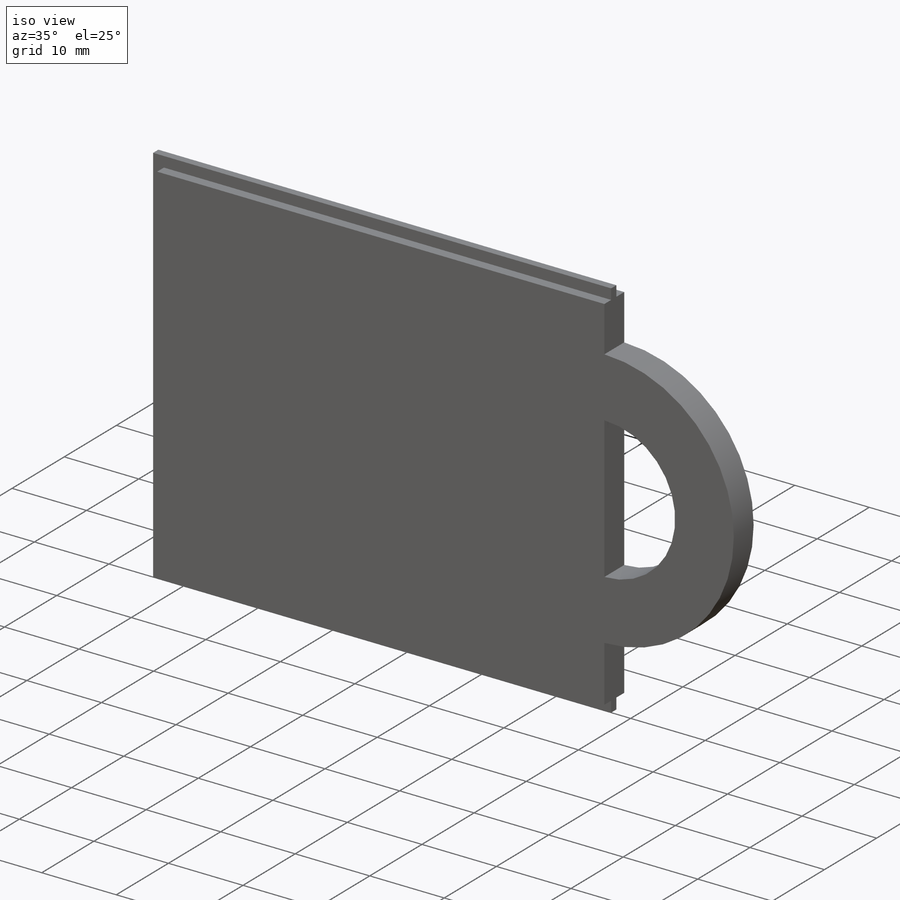
[diagram: iso view]
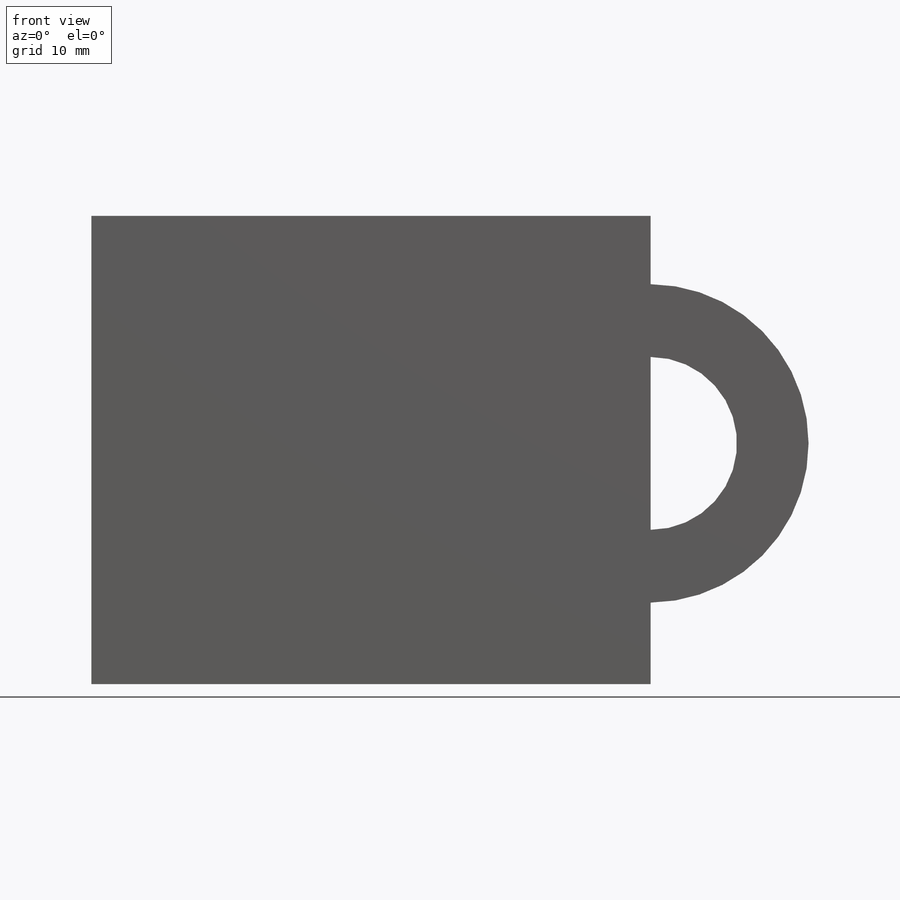
[diagram: front view]
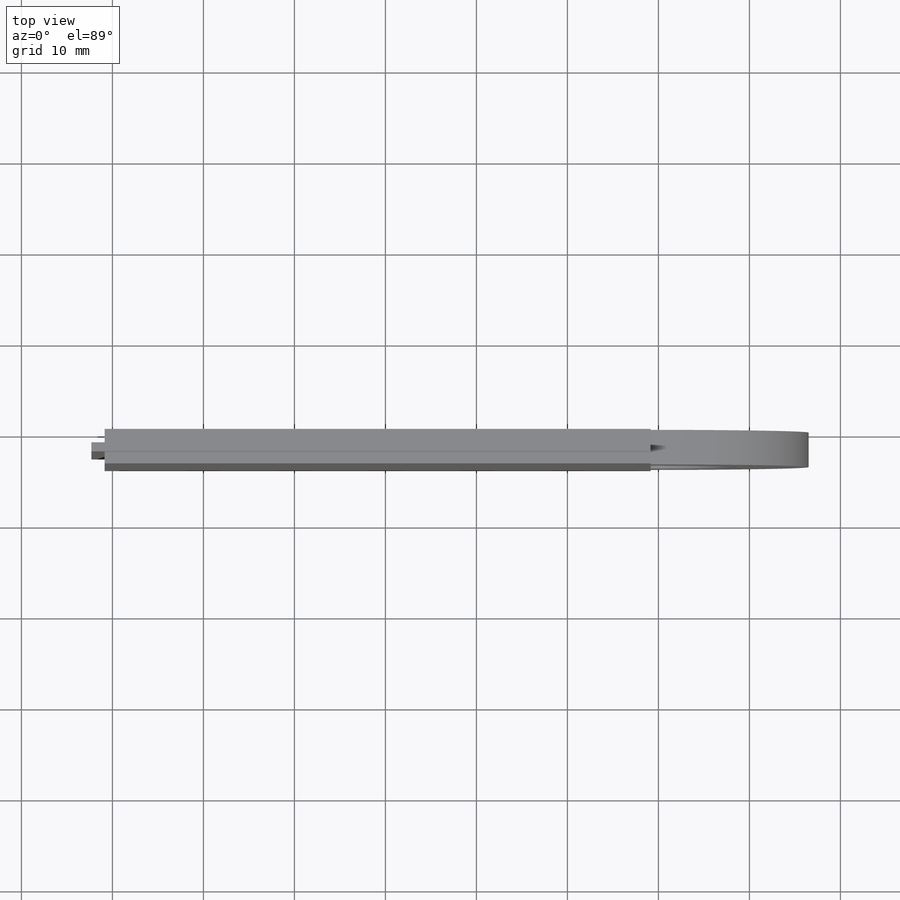
[diagram: top view]
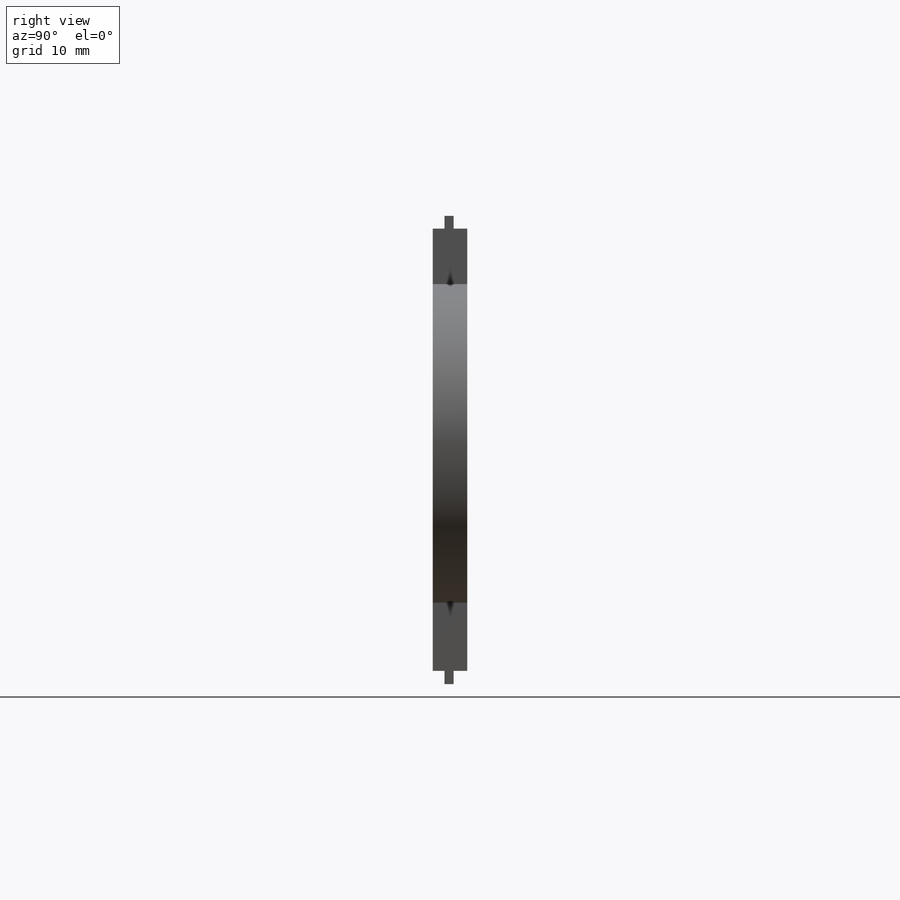
[diagram: right view]
SOLIDWORKS PART (.sldprt)
format: sldprt  version: not decoded by parser v0  size: 196,096 bytes
history: native  units: mm
features: sketch x4, extrude x3, material x1, cut_extrude x1 (+12 scaffold rows collapsed)
feature tree (21):
  scaffold x12  (default folders/planes/origin — collapsed)
  material  "Material <not specified>"
  sketch  "Sketch1"  dims[D1=60.0mm D2=0.4mm D3=0.0mm]
  extrude  "Boss-Extrude1"  Depth=3.8mm
  sketch  "Sketch2"  dims[D1=0.0mm D2=1.4mm D3=0.05mm D4=0.05mm D5=1.4mm]
  sketch  "Sketch3"  dims[D1=35.0mm D2=25.0mm]
  extrude  "Boss-Extrude3"  [1 undecoded]
  sketch  "Sketch4"  dims[c1.D2=17.5mm c1.D1=0.0mm c1.4mm=8.0mm c2.D2=8.0mm]
  cut_extrude  "Cut-Extrude2"  [1 undecoded]
  extrude  "Boss-Extrude4"  Depth=1mm
decode coverage: 6 of 8 modeling features carry decoded parameters
note: 2 parameter values undecoded
note: suppression state not decoded; provenance and decode notes live in map.json
